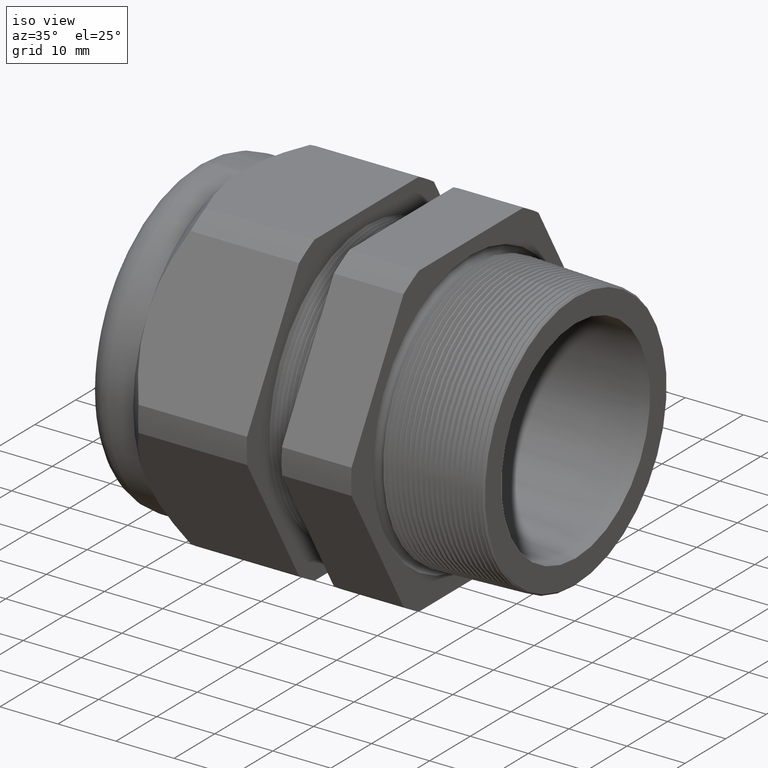
[diagram: clean part render]
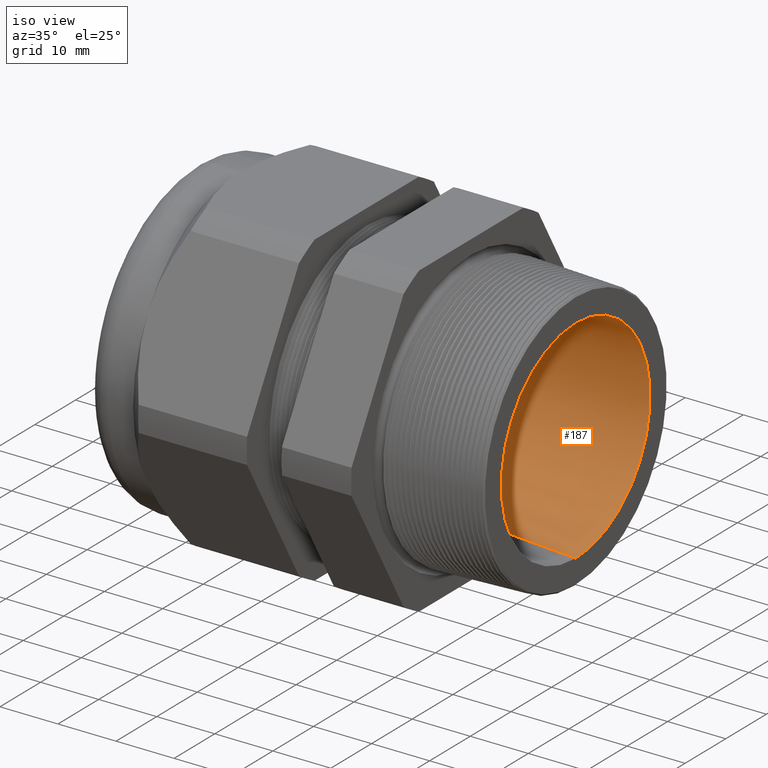
[diagram: same view with one face highlighted and labeled with its STEP entity id]
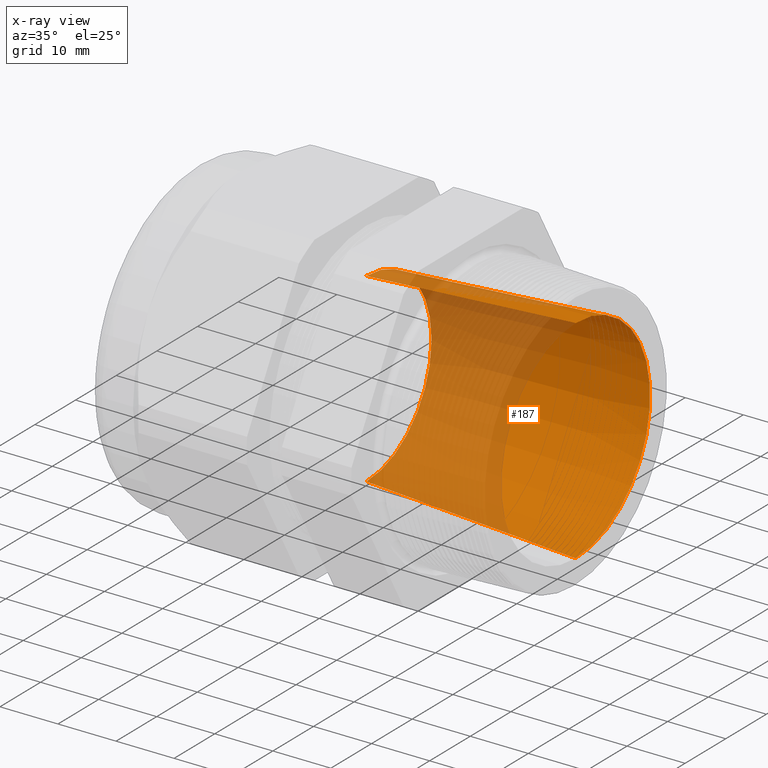
[diagram: x-ray of the same camera — body ghosted, the highlighted face saturated]
A machine part, iso view. The second image highlights one B-rep face of the part: STEP entity #187.
The next image is the same camera in x-ray: the body ghosted, the highlighted face saturated — about 48% of this face is hidden behind the body in this view.
In plain terms, the highlighted conical surface has half-angle 3.648 deg.
Its self-contained STEP definition (entity closure, byte-faithful):
#186 = EDGE_CURVE ( 'NONE', #3828, #3830, #835, .T. ) ;
#187 = ADVANCED_FACE ( 'NONE', ( #825 ), #892, .F. ) ;
#188 = EDGE_LOOP ( 'NONE', ( #5729, #5731, #5732, #278 ) ) ;
#267 = EDGE_CURVE ( 'NONE', #3841, #3838, #998, .T. ) ;
#278 = ORIENTED_EDGE ( 'NONE', *, *, #267, .T. ) ;
#825 = FACE_OUTER_BOUND ( 'NONE', #188, .T. ) ;
#826 = DIRECTION ( 'NONE',  ( 0.0000000000000000000, 0.0000000000000000000, -1.000000000000000000 ) ) ;
#827 = DIRECTION ( 'NONE',  ( 1.000000000000000000, 0.0000000000000000000, 0.0000000000000000000 ) ) ;
#828 = CARTESIAN_POINT ( 'NONE',  ( -1.018802799999999600, 0.0000000000000000000, 0.0000000000000000000 ) ) ;
#829 = AXIS2_PLACEMENT_3D ( 'NONE', #828, #827, #826 ) ;
#835 = CIRCLE ( 'NONE', #829, 0.6300000000000001200 ) ;
#887 = DIRECTION ( 'NONE',  ( 0.0000000000000000000, 0.0000000000000000000, -1.000000000000000000 ) ) ;
#888 = DIRECTION ( 'NONE',  ( 1.000000000000000000, 0.0000000000000000000, 0.0000000000000000000 ) ) ;
#889 = CARTESIAN_POINT ( 'NONE',  ( -1.018802799999999600, 0.0000000000000000000, 0.0000000000000000000 ) ) ;
#890 = AXIS2_PLACEMENT_3D ( 'NONE', #889, #888, #887 ) ;
#892 = CONICAL_SURFACE ( 'NONE', #890, 0.6300000000000001200, 0.06366780490959177100 ) ;
#995 = DIRECTION ( 'NONE',  ( 0.0000000000000000000, 0.0000000000000000000, -1.000000000000000000 ) ) ;
#996 = DIRECTION ( 'NONE',  ( 1.000000000000000000, 0.0000000000000000000, 0.0000000000000000000 ) ) ;
#997 = AXIS2_PLACEMENT_3D ( 'NONE', #1005, #996, #995 ) ;
#998 = CIRCLE ( 'NONE', #997, 0.7204543144669638400 ) ;
#1005 = CARTESIAN_POINT ( 'NONE',  ( 0.3999999999999999700, 0.0000000000000000000, 0.0000000000000000000 ) ) ;
#2763 = CARTESIAN_POINT ( 'NONE',  ( 0.3999999999999999700, 8.823020701438680900E-017, 0.7204543144669638400 ) ) ;
#2785 = CARTESIAN_POINT ( 'NONE',  ( -1.018802799999999600, 7.715274834628326600E-017, 0.6300000000000001200 ) ) ;
#2786 = CARTESIAN_POINT ( 'NONE',  ( -1.018802799999999600, 0.0000000000000000000, -0.6300000000000001200 ) ) ;
#2812 = DIRECTION ( 'NONE',  ( 0.9979738898659472600, 7.791790738527256800E-018, 0.06362479977044976900 ) ) ;
#2813 = VECTOR ( 'NONE', #2812, 39.37007874015748900 ) ;
#2814 = CARTESIAN_POINT ( 'NONE',  ( -1.018802799999999600, 7.715274834628326600E-017, 0.6300000000000001200 ) ) ;
#2815 = LINE ( 'NONE', #2814, #2813 ) ;
#2826 = CARTESIAN_POINT ( 'NONE',  ( 0.3999999999999999700, 0.0000000000000000000, -0.7204543144669638400 ) ) ;
#2940 = DIRECTION ( 'NONE',  ( 0.9979738898659472600, 0.0000000000000000000, -0.06362479977044976900 ) ) ;
#2941 = VECTOR ( 'NONE', #2940, 39.37007874015748900 ) ;
#2942 = CARTESIAN_POINT ( 'NONE',  ( -1.018802799999999600, 0.0000000000000000000, -0.6300000000000001200 ) ) ;
#2947 = LINE ( 'NONE', #2942, #2941 ) ;
#3828 = VERTEX_POINT ( 'NONE', #2786 ) ;
#3830 = VERTEX_POINT ( 'NONE', #2785 ) ;
#3838 = VERTEX_POINT ( 'NONE', #2763 ) ;
#3841 = VERTEX_POINT ( 'NONE', #2826 ) ;
#3845 = EDGE_CURVE ( 'NONE', #3830, #3838, #2815, .T. ) ;
#5048 = EDGE_CURVE ( 'NONE', #3828, #3841, #2947, .T. ) ;
#5729 = ORIENTED_EDGE ( 'NONE', *, *, #3845, .F. ) ;
#5731 = ORIENTED_EDGE ( 'NONE', *, *, #186, .F. ) ;
#5732 = ORIENTED_EDGE ( 'NONE', *, *, #5048, .T. ) ;